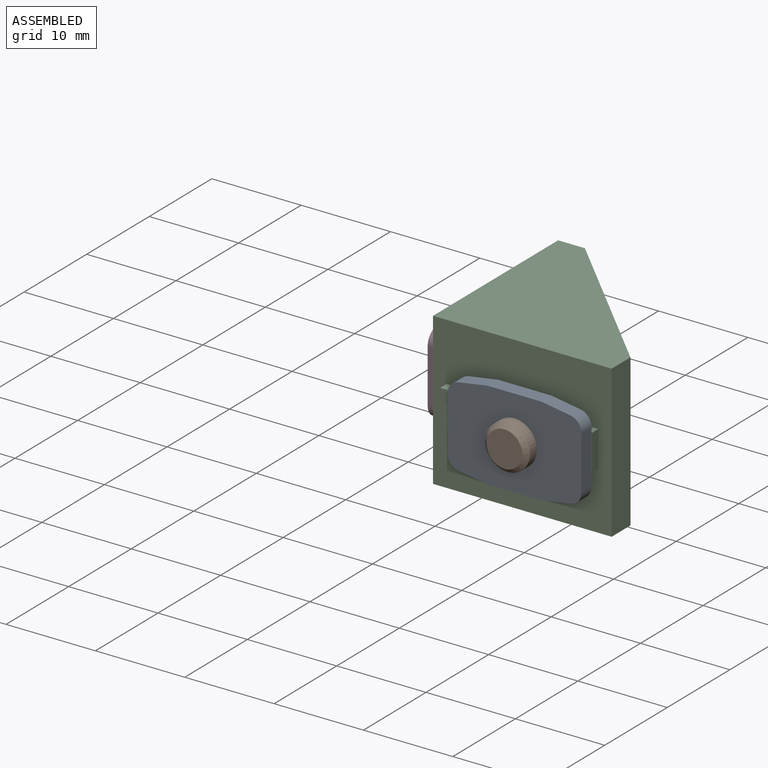
[diagram: assembled view]
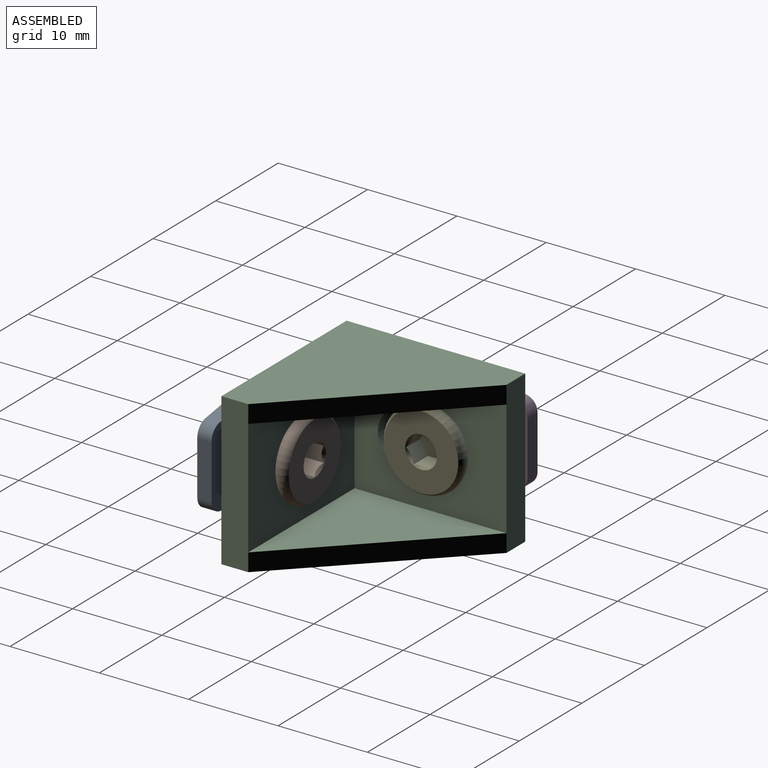
[diagram: assembled view, second angle]
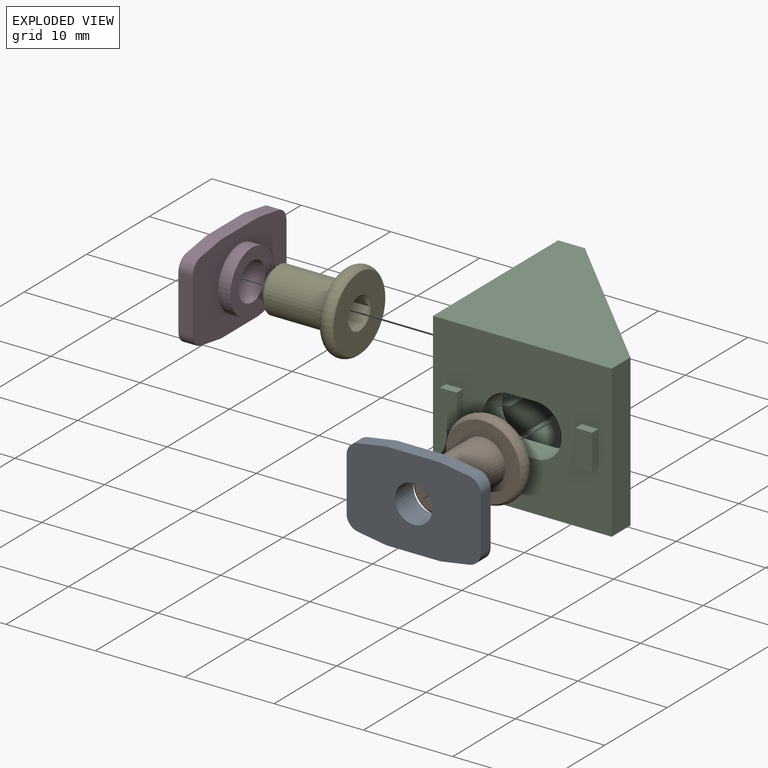
[diagram: exploded view]
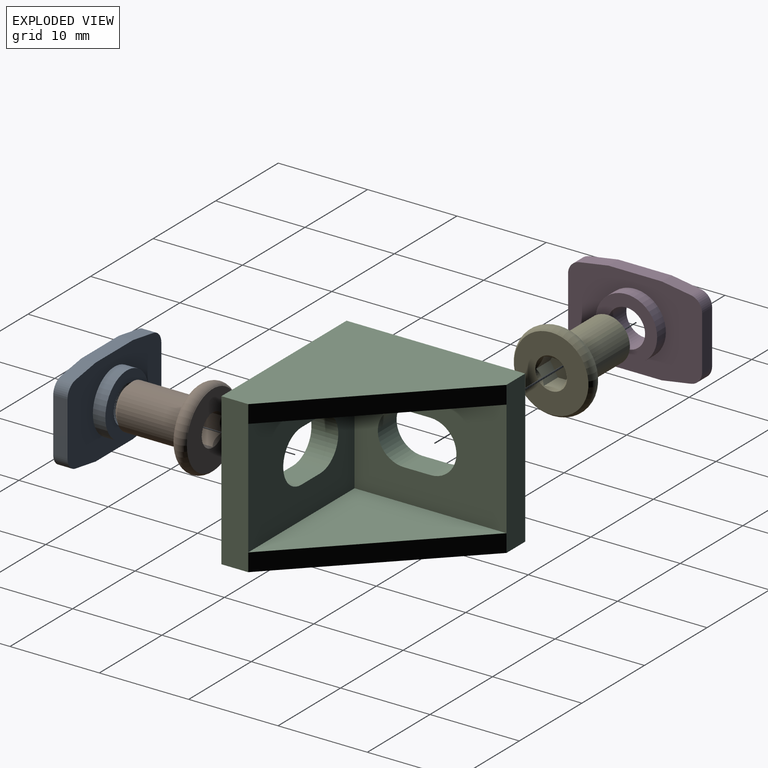
[diagram: exploded view, second angle]
ASSEMBLY  parts=5 mates=4
PART A: 17 faces, bbox 15x10x3 mm
  f0: cylinder r=2.1mm len=4.2mm, axis (0,0,1), area 39.6mm2, adj f15,f16
  f1: cylinder r=3.45mm len=6.9mm, axis (0,0,-1), area 30.3mm2, adj f2,f16
  f2: plane 15x10mm, normal (0,0,1), area 104.8mm2, adj f1,f3,f4,f5,f6,f7,f8,f9
  f3: cylinder r=1.5mm len=1.6mm, axis (0,0,-1), area 3.4mm2, adj f2,f4,f14,f15
  f4: plane 3.24x1.6mm, normal (0.16,0.99,0), area 5.2mm2, adj f2,f3,f5,f15
  f5: plane 6x1.6mm, normal (0,1,0), area 9.6mm2, adj f2,f4,f6,f15
  f6: plane 3.24x1.6mm, normal (-0.16,0.99,0), area 5.2mm2, adj f2,f5,f7,f15
  f7: cylinder r=1.5mm len=1.6mm, axis (0,0,-1), area 3.4mm2, adj f2,f6,f8,f15
  f8: plane 6x1.6mm, normal (-1,0,0), area 9.6mm2, adj f2,f7,f9,f15
  f9: cylinder r=1.5mm len=1.6mm, axis (0,0,-1), area 3.4mm2, adj f2,f8,f10,f15
  f10: plane 3.24x1.6mm, normal (-0.16,-0.99,0), area 5.2mm2, adj f2,f9,f11,f15
  f11: plane 6x1.6mm, normal (0,-1,0), area 9.6mm2, adj f2,f10,f12,f15
  f12: plane 3.24x1.6mm, normal (0.16,-0.99,0), area 5.2mm2, adj f2,f11,f13,f15
  f13: cylinder r=1.5mm len=1.6mm, axis (0,0,-1), area 3.4mm2, adj f2,f12,f14,f15
  f14: plane 6x1.6mm, normal (1,0,0), area 9.6mm2, adj f2,f3,f13,f15
  f15: plane 15x10mm, normal (0,0,-1), area 128.3mm2, adj f0,f3,f4,f5,f6,f7,f8,f9
  f16: plane 6.9x6.9mm, normal (0,0,1), area 23.5mm2, adj f0,f1
PART B: 14 faces, bbox 9.9x9.9x9.9 mm
  f0: cone r=1.78mm half-angle=45deg, axis (0,0,1), area 3mm2, adj f3,f7,f8,f9,f10,f11,f12
  f1: plane 8.32x8.32mm, normal (0,0,-1), area 34.8mm2, adj f2,f6
  f2: torus R=3.5mm, axis (0,0,1), area 46.7mm2, adj f1,f3
  f3: plane 8.32x8.32mm, normal (0,0,1), area 44.4mm2, adj f0,f2
  f4: plane 4x4mm, normal (0,0,-1), area 12.6mm2, adj f5
  f5: cone r=2mm half-angle=45deg, axis (0,0,1), area 10mm2, adj f4,f6
  f6: cylinder r=2.5mm len=7.5mm, axis (0,0,1), area 117.8mm2, adj f1,f5
  f7: plane 2.25x1.5mm, normal (-0.5,-0.87,0), area 3.6mm2, adj f0,f8,f12,f13
  f8: plane 2.25x1.5mm, normal (0.5,-0.87,0), area 3.6mm2, adj f0,f7,f9,f13
  f9: plane 2.25x1.73mm, normal (1,0,0), area 3.6mm2, adj f0,f8,f10,f13
  f10: plane 2.25x1.5mm, normal (0.5,0.87,0), area 3.6mm2, adj f0,f9,f11,f13
  f11: plane 2.25x1.5mm, normal (-0.5,0.87,0), area 3.6mm2, adj f0,f10,f12,f13
  f12: plane 2.42x1.9mm, normal (-1,0,0), area 3.6mm2, adj f0,f7,f11,f13
  f13: plane 3.46x3mm, normal (0,0,1), area 7.8mm2, adj f7,f8,f9,f10,f11,f12
PART C: 40 faces, bbox 21x21x17 mm
  f0: cylinder r=2.9mm len=5.8mm, axis (0,1,0), area 27.3mm2, adj f2,f13,f18,f19
  f1: cylinder r=2.9mm len=5.8mm, axis (1,0,0), area 27.3mm2, adj f3,f12,f15,f16
  f2: plane 20x17mm, normal (0,-1,0), area 281.4mm2, adj f0,f3,f6,f8,f9,f17,f18,f19
  f3: plane 20x17mm, normal (-1,0,0), area 281.4mm2, adj f1,f2,f5,f8,f9,f14,f15,f16
  f4: plane 17x17mm, normal (0.71,0.71,0), area 48.1mm2, adj f5,f6,f9,f10
  f5: plane 17x3mm, normal (0,1,0), area 51mm2, adj f3,f4,f7,f8,f9,f12
  f6: plane 17x3mm, normal (1,0,0), area 51mm2, adj f2,f4,f7,f8,f9,f13
  f7: plane 17x17mm, normal (0.71,0.71,0), area 48.1mm2, adj f5,f6,f8,f11
  f8: plane 20x20mm, normal (0,0,1), area 255.5mm2, adj f2,f3,f5,f6,f7
  f9: plane 20x20mm, normal (0,0,-1), area 255.5mm2, adj f2,f3,f4,f5,f6
  f10: plane 17x17mm, normal (0,0,1), area 144.5mm2, adj f4,f12,f13
  f11: plane 17x17mm, normal (0,0,-1), area 144.5mm2, adj f7,f12,f13
  f12: plane 17x13mm, normal (1,0,0), area 177.2mm2, adj f1,f5,f10,f11,f13,f14,f15,f16
  f13: plane 17x13mm, normal (0,1,0), area 177.2mm2, adj f0,f6,f10,f11,f12,f17,f18,f19
  f14: cylinder r=2.9mm len=5.8mm, axis (1,0,0), area 27.3mm2, adj f3,f12,f15,f16
  f15: plane 3x3mm, normal (0,0,-1), area 9mm2, adj f1,f3,f12,f14
  f16: plane 3x3mm, normal (0,0,1), area 9mm2, adj f1,f3,f12,f14
  f17: cylinder r=2.9mm len=5.8mm, axis (0,1,0), area 27.3mm2, adj f2,f13,f18,f19
  f18: plane 3x3mm, normal (0,0,-1), area 9mm2, adj f0,f2,f13,f17
  f19: plane 3x3mm, normal (0,0,1), area 9mm2, adj f0,f2,f13,f17
  f20: plane 4x1mm, normal (0,1,0), area 4mm2, adj f3,f21,f23,f24
  f21: plane 4x1.85mm, normal (-1,0,0), area 7.4mm2, adj f20,f22,f23,f24
  f22: plane 4x1mm, normal (0,-1,0), area 4mm2, adj f3,f21,f23,f24
  f23: plane 1.85x1mm, normal (0,0,1), area 1.9mm2, adj f3,f20,f21,f22
  f24: plane 1.85x1mm, normal (0,0,-1), area 1.9mm2, adj f3,f20,f21,f22
  f25: plane 4x1mm, normal (0,-1,0), area 4mm2, adj f3,f27,f28,f29
  f26: plane 4x1mm, normal (0,1,0), area 4mm2, adj f3,f27,f28,f29
  f27: plane 4x1.85mm, normal (-1,0,0), area 7.4mm2, adj f25,f26,f28,f29
  f28: plane 1.85x1mm, normal (0,0,1), area 1.9mm2, adj f3,f25,f26,f27
  f29: plane 1.85x1mm, normal (0,0,-1), area 1.9mm2, adj f3,f25,f26,f27
  f30: plane 4x1mm, normal (-1,0,0), area 4mm2, adj f2,f31,f33,f34
  f31: plane 4x1.85mm, normal (0,-1,0), area 7.4mm2, adj f30,f32,f33,f34
  f32: plane 4x1mm, normal (1,0,0), area 4mm2, adj f2,f31,f33,f34
  f33: plane 1.85x1mm, normal (0,0,1), area 1.9mm2, adj f2,f30,f31,f32
  f34: plane 1.85x1mm, normal (0,0,-1), area 1.9mm2, adj f2,f30,f31,f32
  f35: plane 4x1mm, normal (1,0,0), area 4mm2, adj f2,f37,f38,f39
  f36: plane 4x1mm, normal (-1,0,0), area 4mm2, adj f2,f37,f38,f39
  f37: plane 4x1.85mm, normal (0,-1,0), area 7.4mm2, adj f35,f36,f38,f39
  f38: plane 1.85x1mm, normal (0,0,1), area 1.9mm2, adj f2,f35,f36,f37
  f39: plane 1.85x1mm, normal (0,0,-1), area 1.9mm2, adj f2,f35,f36,f37
PART D: same geometry as A
PART E: same geometry as B
PLACE A rot(axis=(-1,0,0),90deg) t=(-23.19,-27.02,96.72)mm
PLACE B rot(axis=(-1,0,0),90deg) t=(-8.19,-20.62,96.72)mm
PLACE C t=(-34.69,-23.62,96.72)mm
PLACE D rot(axis=(0.58,0.58,0.58),120deg) t=(-38.09,-12.12,96.72)mm
PLACE E rot(axis=(0.71,0,0.71),180deg) t=(-31.69,-12.12,111.72)mm
MATE fastened B.f2 <-> C.f17  axis (0,1,0) through (-23.19,-20.62,96.72)mm
MATE fastened E.f2 <-> C.f1  axis (1,0,0) through (-31.69,-12.12,96.72)mm
MATE fastened D.f0 <-> C.f1  axis (1,0,0) through (-36.49,-12.12,96.72)mm
MATE fastened A.f0 <-> C.f17  axis (0,1,0) through (-23.19,-25.42,96.72)mm
